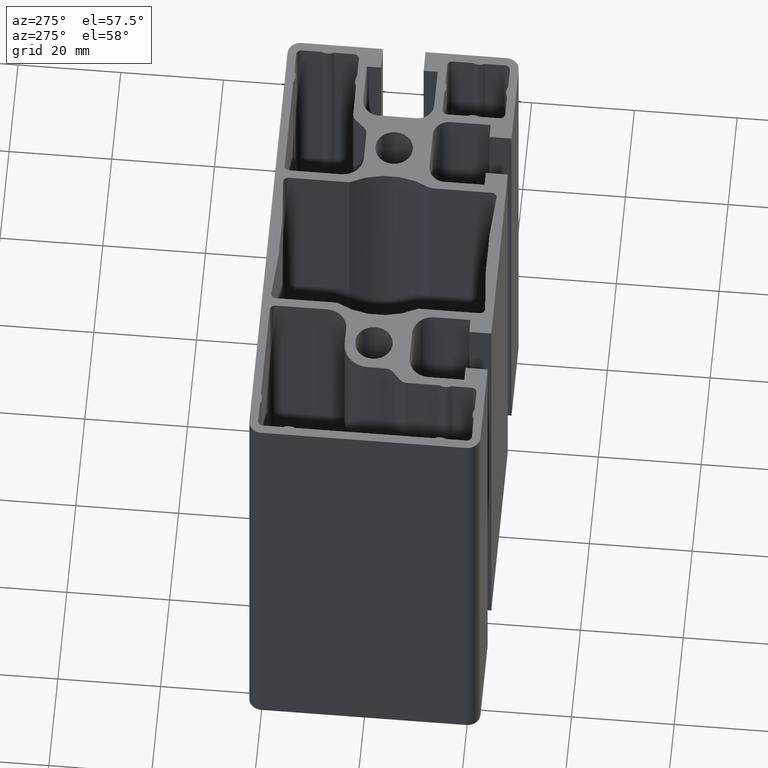
[diagram: clean part render]
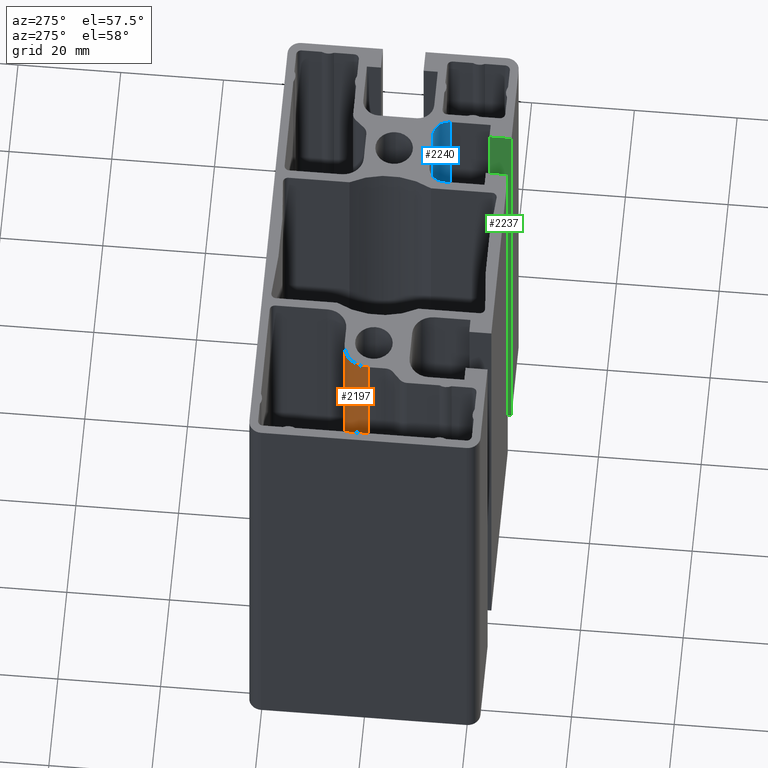
[diagram: same view with three faces highlighted in distinct colors, each labeled with its STEP entity id]
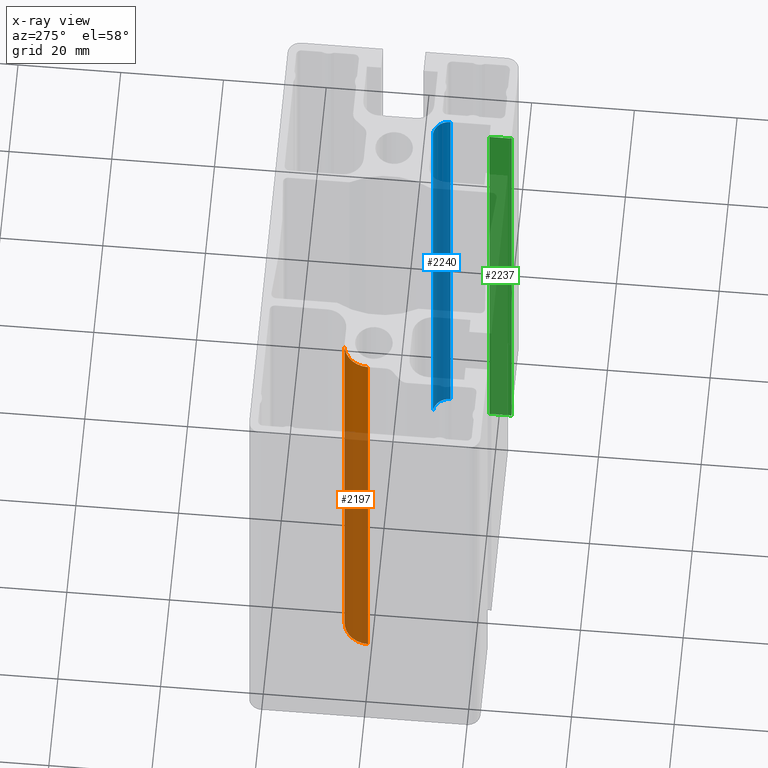
[diagram: x-ray of the same camera — body ghosted, the three highlighted faces saturated]
A machine part, auxiliary view with three faces highlighted in distinct colors.
The next image is the same camera in x-ray (body ghosted, the three faces saturated) — at least one of them is partly hidden behind the body in this view.
Their STEP definitions:

[orange] entity #2197 — the highlighted cylindrical surface (edge-blend (fillet) strip) has radius 5 mm, axis along (0, 0, 1).
#111=FACE_OUTER_BOUND('',#225,.T.);
#225=EDGE_LOOP('',(#1533,#1534,#1535,#1536));
#371=LINE('',#3284,#605);
#372=LINE('',#3290,#606);
#605=VECTOR('',#2619,100.);
#606=VECTOR('',#2626,100.);
#821=CIRCLE('',#2332,5.);
#822=CIRCLE('',#2333,5.);
#939=VERTEX_POINT('',#3280);
#940=VERTEX_POINT('',#3282);
#941=VERTEX_POINT('',#3286);
#942=VERTEX_POINT('',#3288);
#1181=EDGE_CURVE('',#940,#939,#371,.T.);
#1182=EDGE_CURVE('',#939,#941,#821,.T.);
#1183=EDGE_CURVE('',#942,#940,#822,.T.);
#1184=EDGE_CURVE('',#942,#941,#372,.T.);
#1533=ORIENTED_EDGE('',*,*,#1182,.F.);
#1534=ORIENTED_EDGE('',*,*,#1181,.F.);
#1535=ORIENTED_EDGE('',*,*,#1183,.F.);
#1536=ORIENTED_EDGE('',*,*,#1184,.T.);
#2138=CYLINDRICAL_SURFACE('',#2331,5.);
#2197=ADVANCED_FACE('',(#111),#2138,.T.);
#2331=AXIS2_PLACEMENT_3D('',#3285,#2620,#2621);
#2332=AXIS2_PLACEMENT_3D('',#3287,#2622,#2623);
#2333=AXIS2_PLACEMENT_3D('',#3289,#2624,#2625);
#2619=DIRECTION('',(0.,0.,1.));
#2620=DIRECTION('center_axis',(0.,0.,1.));
#2621=DIRECTION('ref_axis',(2.1316282072803E-14,-1.,0.));
#2622=DIRECTION('center_axis',(0.,0.,1.));
#2623=DIRECTION('ref_axis',(2.1316282072803E-14,-1.,0.));
#2624=DIRECTION('center_axis',(0.,0.,-1.));
#2625=DIRECTION('ref_axis',(2.1316282072803E-14,-1.,0.));
#2626=DIRECTION('',(0.,0.,1.));
#3280=CARTESIAN_POINT('',(-23.1500000000002,5.64999999999985,100.));
#3282=CARTESIAN_POINT('',(-23.1500000000002,5.64999999999985,0.));
#3284=CARTESIAN_POINT('',(-23.1500000000002,5.64999999999985,0.));
#3285=CARTESIAN_POINT('Origin',(-23.1500000000001,0.649999999999853,0.));
#3286=CARTESIAN_POINT('',(-28.1500000000001,0.649999999999977,100.));
#3287=CARTESIAN_POINT('Origin',(-23.1500000000001,0.649999999999853,100.));
#3288=CARTESIAN_POINT('',(-28.1500000000001,0.649999999999977,0.));
#3289=CARTESIAN_POINT('Origin',(-23.1500000000001,0.649999999999853,0.));
#3290=CARTESIAN_POINT('',(-28.1500000000001,0.649999999999977,0.));

[blue] entity #2240 — the highlighted cylindrical surface (edge-blend (fillet) strip) has radius 3.2 mm, axis along (0, 0, 1).
#154=FACE_OUTER_BOUND('',#269,.T.);
#269=EDGE_LOOP('',(#1703,#1704,#1705,#1706));
#455=LINE('',#3543,#689);
#457=LINE('',#3549,#691);
#689=VECTOR('',#2877,100.);
#691=VECTOR('',#2883,100.);
#865=CIRCLE('',#2419,3.19999999999999);
#866=CIRCLE('',#2420,3.19999999999999);
#1027=VERTEX_POINT('',#3540);
#1028=VERTEX_POINT('',#3542);
#1029=VERTEX_POINT('',#3546);
#1030=VERTEX_POINT('',#3548);
#1309=EDGE_CURVE('',#1027,#1028,#455,.T.);
#1311=EDGE_CURVE('',#1029,#1027,#865,.T.);
#1312=EDGE_CURVE('',#1030,#1029,#457,.T.);
#1313=EDGE_CURVE('',#1028,#1030,#866,.T.);
#1703=ORIENTED_EDGE('',*,*,#1311,.F.);
#1704=ORIENTED_EDGE('',*,*,#1312,.F.);
#1705=ORIENTED_EDGE('',*,*,#1313,.F.);
#1706=ORIENTED_EDGE('',*,*,#1309,.F.);
#2160=CYLINDRICAL_SURFACE('',#2418,3.19999999999999);
#2240=ADVANCED_FACE('',(#154),#2160,.F.);
#2418=AXIS2_PLACEMENT_3D('',#3545,#2879,#2880);
#2419=AXIS2_PLACEMENT_3D('',#3547,#2881,#2882);
#2420=AXIS2_PLACEMENT_3D('',#3550,#2884,#2885);
#2877=DIRECTION('',(0.,0.,-1.));
#2879=DIRECTION('center_axis',(0.,0.,1.));
#2880=DIRECTION('ref_axis',(1.,1.11022302462517E-14,0.));
#2881=DIRECTION('center_axis',(0.,0.,-1.));
#2882=DIRECTION('ref_axis',(1.,1.11022302462517E-14,0.));
#2883=DIRECTION('',(0.,0.,1.));
#2884=DIRECTION('center_axis',(0.,0.,1.));
#2885=DIRECTION('ref_axis',(1.,1.11022302462517E-14,0.));
#3540=CARTESIAN_POINT('',(29.3999999999998,-10.3999999999999,100.));
#3542=CARTESIAN_POINT('',(29.3999999999998,-10.3999999999999,0.));
#3543=CARTESIAN_POINT('',(29.3999999999998,-10.3999999999999,0.));
#3545=CARTESIAN_POINT('Origin',(26.1999999999998,-10.4,0.));
#3546=CARTESIAN_POINT('',(26.1999999999998,-7.20000000000002,100.));
#3547=CARTESIAN_POINT('Origin',(26.1999999999998,-10.4,100.));
#3548=CARTESIAN_POINT('',(26.1999999999998,-7.20000000000002,0.));
#3549=CARTESIAN_POINT('',(26.1999999999998,-7.20000000000002,0.));
#3550=CARTESIAN_POINT('Origin',(26.1999999999998,-10.4,0.));

[green] entity #2237 — the highlighted planar face has unit normal (1, 0, 0).
#56=PLANE('',#2415);
#151=FACE_OUTER_BOUND('',#266,.T.);
#266=EDGE_LOOP('',(#1691,#1692,#1693,#1694));
#447=LINE('',#3527,#681);
#448=LINE('',#3529,#682);
#449=LINE('',#3531,#683);
#450=LINE('',#3532,#684);
#681=VECTOR('',#2865,4.30000000000009);
#682=VECTOR('',#2866,100.);
#683=VECTOR('',#2867,4.30000000000009);
#684=VECTOR('',#2868,100.);
#1021=VERTEX_POINT('',#3525);
#1022=VERTEX_POINT('',#3526);
#1023=VERTEX_POINT('',#3528);
#1024=VERTEX_POINT('',#3530);
#1301=EDGE_CURVE('',#1021,#1022,#447,.T.);
#1302=EDGE_CURVE('',#1023,#1021,#448,.T.);
#1303=EDGE_CURVE('',#1024,#1023,#449,.T.);
#1304=EDGE_CURVE('',#1022,#1024,#450,.T.);
#1691=ORIENTED_EDGE('',*,*,#1301,.F.);
#1692=ORIENTED_EDGE('',*,*,#1302,.F.);
#1693=ORIENTED_EDGE('',*,*,#1303,.F.);
#1694=ORIENTED_EDGE('',*,*,#1304,.F.);
#2237=ADVANCED_FACE('',(#151),#56,.F.);
#2415=AXIS2_PLACEMENT_3D('',#3524,#2863,#2864);
#2863=DIRECTION('center_axis',(1.,0.,0.));
#2864=DIRECTION('ref_axis',(0.,1.,0.));
#2865=DIRECTION('',(0.,-1.,0.));
#2866=DIRECTION('',(0.,0.,1.));
#2867=DIRECTION('',(0.,1.,0.));
#2868=DIRECTION('',(0.,0.,-1.));
#3524=CARTESIAN_POINT('Origin',(26.6499999999998,-22.5000000000001,0.));
#3525=CARTESIAN_POINT('',(26.6499999999998,-18.2,100.));
#3526=CARTESIAN_POINT('',(26.6499999999998,-22.5000000000001,100.));
#3527=CARTESIAN_POINT('',(26.6499999999998,-11.25,100.));
#3528=CARTESIAN_POINT('',(26.6499999999998,-18.2,0.));
#3529=CARTESIAN_POINT('',(26.6499999999998,-18.2,0.));
#3530=CARTESIAN_POINT('',(26.6499999999998,-22.5000000000001,0.));
#3531=CARTESIAN_POINT('',(26.6499999999998,-11.25,0.));
#3532=CARTESIAN_POINT('',(26.6499999999998,-22.5,0.));